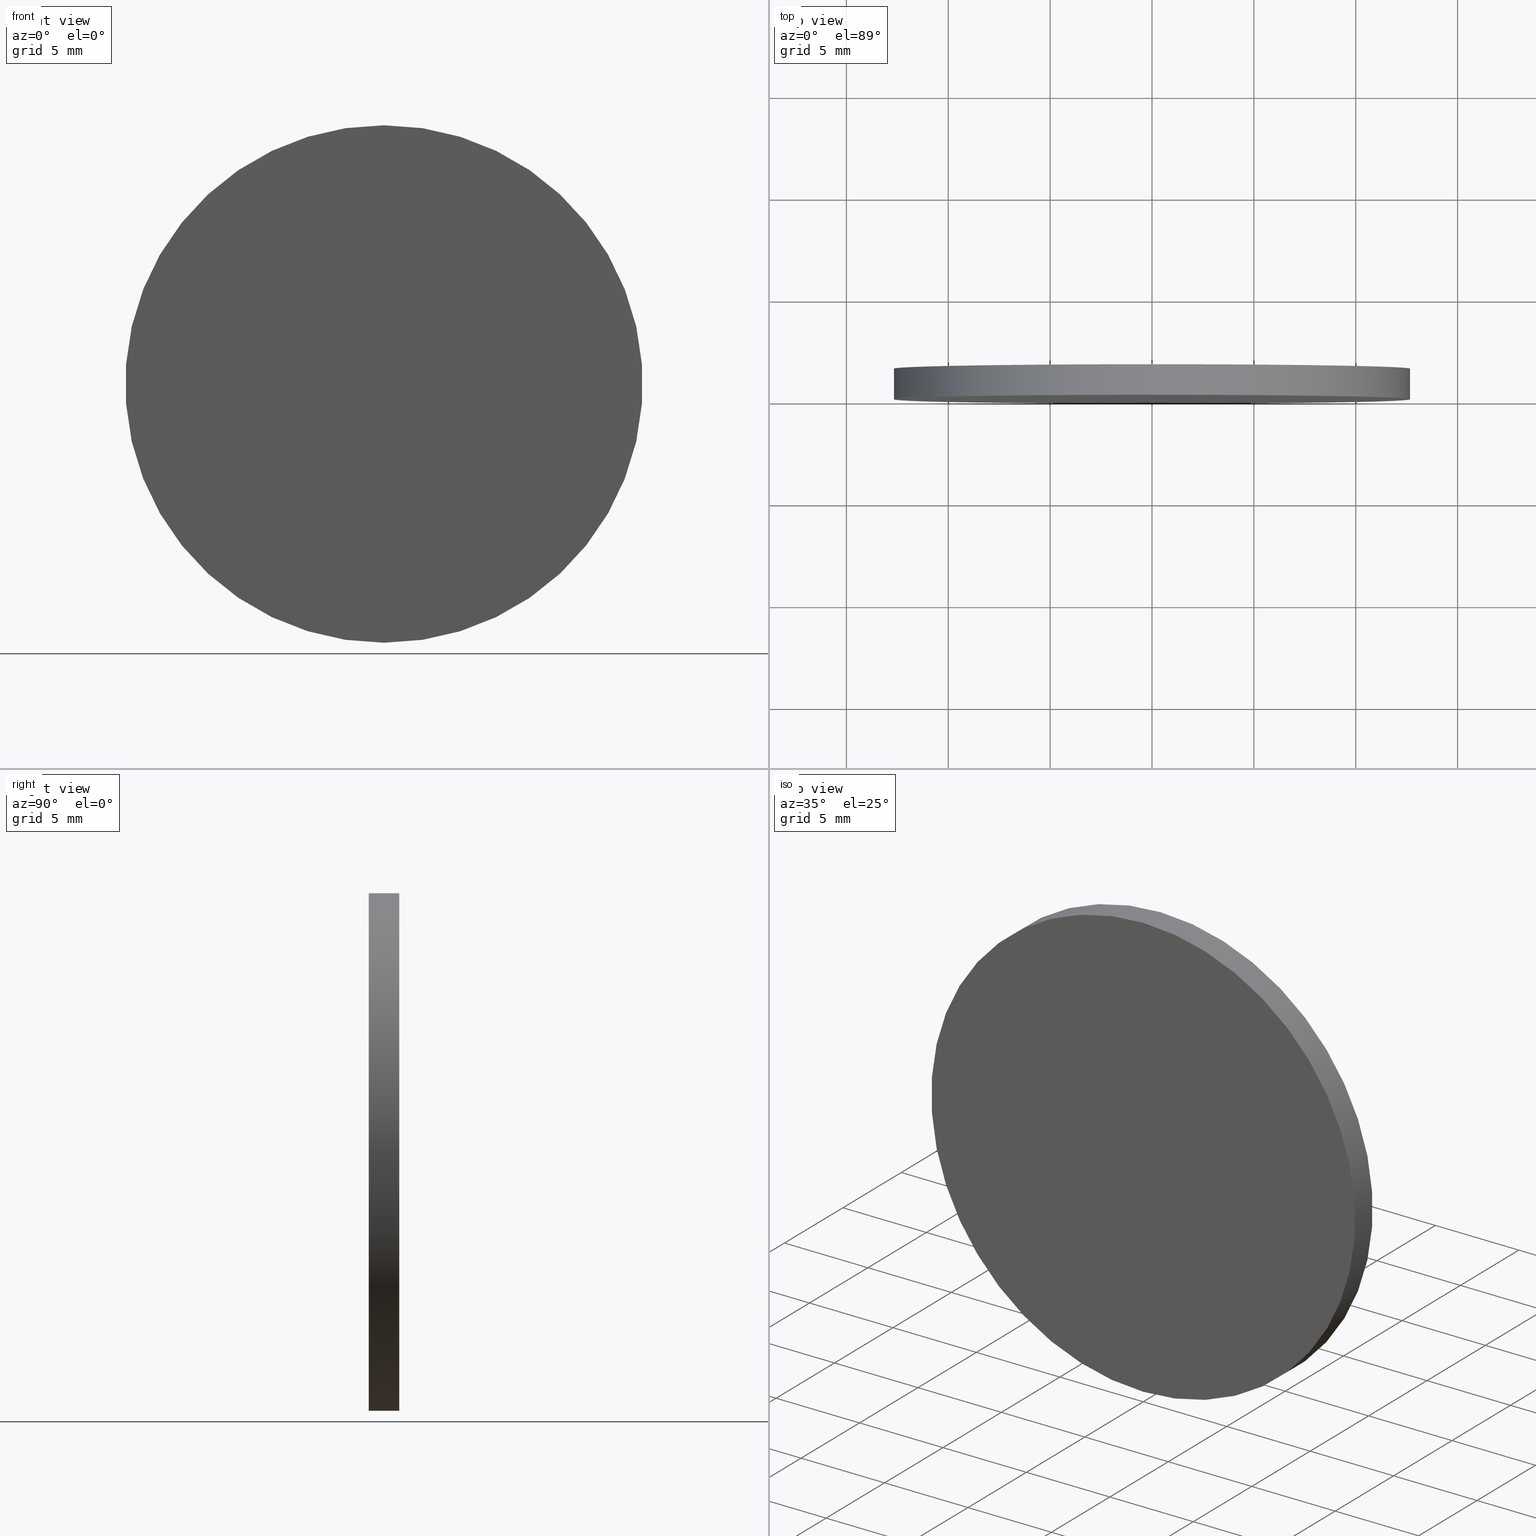
[diagram: canonical four-view strip — front | top / right | iso, engineering-drawing reading convention]
A machine part, canonical four-view strip (front | top / right | iso — engineering-drawing reading convention). The complete STEP part file that produces these views, byte-faithful:
ISO-10303-21;
HEADER;
FILE_DESCRIPTION (( 'STEP AP214' ),
    '1' );
FILE_NAME ('350502.STEP',
    '2019-08-14T05:52:44',
    ( 'user' ),
    ( '΢���й�' ),
    'SwSTEP 2.0',
    'SolidWorks 2016',
    '' );
FILE_SCHEMA (( 'AUTOMOTIVE_DESIGN' ));
ENDSEC;

DATA;
#1 = EDGE_CURVE ( 'NONE', #137, #12, #3, .T. ) ;
#2 =( LENGTH_UNIT ( ) NAMED_UNIT ( * ) SI_UNIT ( .MILLI., .METRE. ) );
#3 = CIRCLE ( 'NONE', #115, 12.69999999999999900 ) ;
#4 =( NAMED_UNIT ( * ) SI_UNIT ( $, .STERADIAN. ) SOLID_ANGLE_UNIT ( ) );
#5 = AXIS2_PLACEMENT_3D ( 'NONE', #87, #127, #116 ) ;
#6 = VECTOR ( 'NONE', #43, 1000.000000000000000 ) ;
#7 =( LENGTH_UNIT ( ) NAMED_UNIT ( * ) SI_UNIT ( .MILLI., .METRE. ) );
#8 = PRODUCT ( '350502', '350502', '', ( #100 ) ) ;
#9 = ORIENTED_EDGE ( 'NONE', *, *, #89, .T. ) ;
#10 = CARTESIAN_POINT ( 'NONE',  ( 0.0000000000000000000, 1.500000000000000000, -12.69999999999999900 ) ) ;
#11 = DIRECTION ( 'NONE',  ( -0.0000000000000000000, -1.000000000000000000, -0.0000000000000000000 ) ) ;
#12 = VERTEX_POINT ( 'NONE', #34 ) ;
#13 = CARTESIAN_POINT ( 'NONE',  ( 0.0000000000000000000, 0.0000000000000000000, 0.0000000000000000000 ) ) ;
#14 = PLANE ( 'NONE',  #123 ) ;
#15 =( LENGTH_UNIT ( ) NAMED_UNIT ( * ) SI_UNIT ( .MILLI., .METRE. ) );
#16 = CIRCLE ( 'NONE', #5, 12.69999999999999900 ) ;
#17 = ORIENTED_EDGE ( 'NONE', *, *, #1, .F. ) ;
#18 = SURFACE_SIDE_STYLE ('',( #73 ) ) ;
#19 = EDGE_LOOP ( 'NONE', ( #17, #85, #9, #99 ) ) ;
#20 = PRODUCT_DEFINITION_SHAPE ( 'NONE', 'NONE',  #50 ) ;
#21 = ADVANCED_FACE ( 'NONE', ( #91 ), #14, .T. ) ;
#22 = STYLED_ITEM ( 'NONE', ( #103 ), #133 ) ;
#23 = UNCERTAINTY_MEASURE_WITH_UNIT (LENGTH_MEASURE( 1.000000000000000100E-005 ), #2, 'distance_accuracy_value', 'NONE');
#24 = FILL_AREA_STYLE_COLOUR ( '', #118 ) ;
#25 = CIRCLE ( 'NONE', #104, 12.69999999999999900 ) ;
#26 = VERTEX_POINT ( 'NONE', #122 ) ;
#27 = AXIS2_PLACEMENT_3D ( 'NONE', #96, #32, #106 ) ;
#28 = SURFACE_SIDE_STYLE ('',( #121 ) ) ;
#29 = AXIS2_PLACEMENT_3D ( 'NONE', #13, #120, #129 ) ;
#30 = DIRECTION ( 'NONE',  ( 0.0000000000000000000, -0.0000000000000000000, 1.000000000000000000 ) ) ;
#31 = ORIENTED_EDGE ( 'NONE', *, *, #1, .T. ) ;
#32 = DIRECTION ( 'NONE',  ( 0.0000000000000000000, 1.000000000000000000, 0.0000000000000000000 ) ) ;
#33 = PRESENTATION_LAYER_ASSIGNMENT (  '', '', ( #22 ) ) ;
#34 = CARTESIAN_POINT ( 'NONE',  ( 0.0000000000000000000, 1.500000000000000000, -12.69999999999999900 ) ) ;
#35 = APPLICATION_CONTEXT ( 'automotive_design' ) ;
#36 =( NAMED_UNIT ( * ) SI_UNIT ( $, .STERADIAN. ) SOLID_ANGLE_UNIT ( ) );
#37 = ORIENTED_EDGE ( 'NONE', *, *, #70, .F. ) ;
#38 = MECHANICAL_DESIGN_GEOMETRIC_PRESENTATION_REPRESENTATION (  '', ( #22 ), #48 ) ;
#39 = AXIS2_PLACEMENT_3D ( 'NONE', #49, #130, #69 ) ;
#40 = DIRECTION ( 'NONE',  ( -0.0000000000000000000, -1.000000000000000000, -0.0000000000000000000 ) ) ;
#41 = PLANE ( 'NONE',  #29 ) ;
#42 = CIRCLE ( 'NONE', #27, 12.69999999999999900 ) ;
#43 = DIRECTION ( 'NONE',  ( -0.0000000000000000000, -1.000000000000000000, -0.0000000000000000000 ) ) ;
#44 = CARTESIAN_POINT ( 'NONE',  ( 0.0000000000000000000, 1.500000000000000000, 0.0000000000000000000 ) ) ;
#45 = APPLICATION_PROTOCOL_DEFINITION ( 'draft international standard', 'automotive_design', 1998, #56 ) ;
#46 = APPLICATION_PROTOCOL_DEFINITION ( 'draft international standard', 'automotive_design', 1998, #35 ) ;
#47 = CARTESIAN_POINT ( 'NONE',  ( 0.0000000000000000000, 1.500000000000000000, 0.0000000000000000000 ) ) ;
#48 =( GEOMETRIC_REPRESENTATION_CONTEXT ( 3 ) GLOBAL_UNCERTAINTY_ASSIGNED_CONTEXT ( ( #109 ) ) GLOBAL_UNIT_ASSIGNED_CONTEXT ( ( #7, #72, #132 ) ) REPRESENTATION_CONTEXT ( 'NONE', 'WORKASPACE' ) );
#49 = CARTESIAN_POINT ( 'NONE',  ( 0.0000000000000000000, 0.0000000000000000000, 0.0000000000000000000 ) ) ;
#50 = PRODUCT_DEFINITION ( 'δ֪', '', #55, #97 ) ;
#51 = DIRECTION ( 'NONE',  ( 0.0000000000000000000, 1.000000000000000000, 0.0000000000000000000 ) ) ;
#52 = ORIENTED_EDGE ( 'NONE', *, *, #81, .F. ) ;
#53 =( NAMED_UNIT ( * ) PLANE_ANGLE_UNIT ( ) SI_UNIT ( $, .RADIAN. ) );
#54 =( GEOMETRIC_REPRESENTATION_CONTEXT ( 3 ) GLOBAL_UNCERTAINTY_ASSIGNED_CONTEXT ( ( #23 ) ) GLOBAL_UNIT_ASSIGNED_CONTEXT ( ( #2, #53, #36 ) ) REPRESENTATION_CONTEXT ( 'NONE', 'WORKASPACE' ) );
#55 = PRODUCT_DEFINITION_FORMATION_WITH_SPECIFIED_SOURCE ( '�κ�', '', #8, .NOT_KNOWN. ) ;
#56 = APPLICATION_CONTEXT ( 'automotive_design' ) ;
#57 = ORIENTED_EDGE ( 'NONE', *, *, #95, .T. ) ;
#58 = FACE_OUTER_BOUND ( 'NONE', #19, .T. ) ;
#59 = FILL_AREA_STYLE_COLOUR ( '', #90 ) ;
#60 = DIRECTION ( 'NONE',  ( 0.0000000000000000000, 0.0000000000000000000, 1.000000000000000000 ) ) ;
#61 = UNCERTAINTY_MEASURE_WITH_UNIT (LENGTH_MEASURE( 1.000000000000000100E-005 ), #15, 'distance_accuracy_value', 'NONE');
#62 = EDGE_CURVE ( 'NONE', #12, #26, #82, .T. ) ;
#63 = ADVANCED_FACE ( 'NONE', ( #58 ), #98, .T. ) ;
#64 = PRODUCT_RELATED_PRODUCT_CATEGORY ( 'part', '', ( #8 ) ) ;
#65 = DIRECTION ( 'NONE',  ( 0.0000000000000000000, 1.000000000000000000, 0.0000000000000000000 ) ) ;
#66 = CARTESIAN_POINT ( 'NONE',  ( 0.0000000000000000000, 1.500000000000000000, 0.0000000000000000000 ) ) ;
#67 = DIRECTION ( 'NONE',  ( 0.0000000000000000000, 1.000000000000000000, 0.0000000000000000000 ) ) ;
#68 = ORIENTED_EDGE ( 'NONE', *, *, #89, .F. ) ;
#69 = DIRECTION ( 'NONE',  ( 1.000000000000000000, 0.0000000000000000000, 0.0000000000000000000 ) ) ;
#70 = EDGE_CURVE ( 'NONE', #137, #139, #108, .T. ) ;
#71 = STYLED_ITEM ( 'NONE', ( #117 ), #84 ) ;
#72 =( NAMED_UNIT ( * ) PLANE_ANGLE_UNIT ( ) SI_UNIT ( $, .RADIAN. ) );
#73 = SURFACE_STYLE_FILL_AREA ( #93 ) ;
#74 = ADVANCED_FACE ( 'NONE', ( #112 ), #131, .T. ) ;
#75 = CARTESIAN_POINT ( 'NONE',  ( 1.555301434917138400E-015, 1.500000000000000000, 12.69999999999999900 ) ) ;
#76 = PRESENTATION_LAYER_ASSIGNMENT (  '', '', ( #71 ) ) ;
#77 = CARTESIAN_POINT ( 'NONE',  ( 0.0000000000000000000, 1.500000000000000000, 0.0000000000000000000 ) ) ;
#78 = SURFACE_STYLE_USAGE ( .BOTH. , #18 ) ;
#79 = SHAPE_DEFINITION_REPRESENTATION ( #20, #84 ) ;
#80 = EDGE_LOOP ( 'NONE', ( #37, #52, #110, #57 ) ) ;
#81 = EDGE_CURVE ( 'NONE', #12, #137, #25, .T. ) ;
#82 = LINE ( 'NONE', #10, #6 ) ;
#83 = MECHANICAL_DESIGN_GEOMETRIC_PRESENTATION_REPRESENTATION (  '', ( #71 ), #92 ) ;
#84 = ADVANCED_BREP_SHAPE_REPRESENTATION ( '350502', ( #133, #39 ), #54 ) ;
#85 = ORIENTED_EDGE ( 'NONE', *, *, #70, .T. ) ;
#86 = DIRECTION ( 'NONE',  ( -0.0000000000000000000, -1.000000000000000000, -0.0000000000000000000 ) ) ;
#87 = CARTESIAN_POINT ( 'NONE',  ( 0.0000000000000000000, 0.0000000000000000000, 0.0000000000000000000 ) ) ;
#88 =( NAMED_UNIT ( * ) PLANE_ANGLE_UNIT ( ) SI_UNIT ( $, .RADIAN. ) );
#89 = EDGE_CURVE ( 'NONE', #139, #26, #42, .T. ) ;
#90 = COLOUR_RGB ( '',1.000000000000000000, 1.000000000000000000, 1.000000000000000000 ) ;
#91 = FACE_OUTER_BOUND ( 'NONE', #94, .T. ) ;
#92 =( GEOMETRIC_REPRESENTATION_CONTEXT ( 3 ) GLOBAL_UNCERTAINTY_ASSIGNED_CONTEXT ( ( #61 ) ) GLOBAL_UNIT_ASSIGNED_CONTEXT ( ( #15, #88, #4 ) ) REPRESENTATION_CONTEXT ( 'NONE', 'WORKASPACE' ) );
#93 = FILL_AREA_STYLE ('',( #24 ) ) ;
#94 = EDGE_LOOP ( 'NONE', ( #114, #31 ) ) ;
#95 = EDGE_CURVE ( 'NONE', #26, #139, #16, .T. ) ;
#96 = CARTESIAN_POINT ( 'NONE',  ( 0.0000000000000000000, 0.0000000000000000000, 0.0000000000000000000 ) ) ;
#97 = PRODUCT_DEFINITION_CONTEXT ( 'detailed design', #56, 'design' ) ;
#98 = CYLINDRICAL_SURFACE ( 'NONE', #128, 12.69999999999999900 ) ;
#99 = ORIENTED_EDGE ( 'NONE', *, *, #62, .F. ) ;
#100 = PRODUCT_CONTEXT ( 'NONE', #35, 'mechanical' ) ;
#101 = SURFACE_STYLE_USAGE ( .BOTH. , #28 ) ;
#102 = CARTESIAN_POINT ( 'NONE',  ( 1.555301434917138400E-015, 1.500000000000000000, 12.69999999999999900 ) ) ;
#103 = PRESENTATION_STYLE_ASSIGNMENT (( #78 ) ) ;
#104 = AXIS2_PLACEMENT_3D ( 'NONE', #138, #65, #125 ) ;
#105 = CLOSED_SHELL ( 'NONE', ( #63, #74, #21, #113 ) ) ;
#106 = DIRECTION ( 'NONE',  ( 0.0000000000000000000, 0.0000000000000000000, 1.000000000000000000 ) ) ;
#107 = CARTESIAN_POINT ( 'NONE',  ( 1.555301434917138400E-015, 0.0000000000000000000, 12.69999999999999900 ) ) ;
#108 = LINE ( 'NONE', #75, #119 ) ;
#109 = UNCERTAINTY_MEASURE_WITH_UNIT (LENGTH_MEASURE( 1.000000000000000100E-005 ), #7, 'distance_accuracy_value', 'NONE');
#110 = ORIENTED_EDGE ( 'NONE', *, *, #62, .T. ) ;
#111 = FILL_AREA_STYLE ('',( #59 ) ) ;
#112 = FACE_OUTER_BOUND ( 'NONE', #80, .T. ) ;
#113 = ADVANCED_FACE ( 'NONE', ( #126 ), #41, .F. ) ;
#114 = ORIENTED_EDGE ( 'NONE', *, *, #81, .T. ) ;
#115 = AXIS2_PLACEMENT_3D ( 'NONE', #77, #67, #60 ) ;
#116 = DIRECTION ( 'NONE',  ( 0.0000000000000000000, 0.0000000000000000000, 1.000000000000000000 ) ) ;
#117 = PRESENTATION_STYLE_ASSIGNMENT (( #101 ) ) ;
#118 = COLOUR_RGB ( '',1.000000000000000000, 1.000000000000000000, 1.000000000000000000 ) ;
#119 = VECTOR ( 'NONE', #86, 1000.000000000000000 ) ;
#120 = DIRECTION ( 'NONE',  ( 0.0000000000000000000, 1.000000000000000000, 0.0000000000000000000 ) ) ;
#121 = SURFACE_STYLE_FILL_AREA ( #111 ) ;
#122 = CARTESIAN_POINT ( 'NONE',  ( 0.0000000000000000000, 0.0000000000000000000, -12.69999999999999900 ) ) ;
#123 = AXIS2_PLACEMENT_3D ( 'NONE', #44, #51, #30 ) ;
#124 = EDGE_LOOP ( 'NONE', ( #135, #68 ) ) ;
#125 = DIRECTION ( 'NONE',  ( 0.0000000000000000000, 0.0000000000000000000, 1.000000000000000000 ) ) ;
#126 = FACE_OUTER_BOUND ( 'NONE', #124, .T. ) ;
#127 = DIRECTION ( 'NONE',  ( 0.0000000000000000000, 1.000000000000000000, 0.0000000000000000000 ) ) ;
#128 = AXIS2_PLACEMENT_3D ( 'NONE', #47, #11, #134 ) ;
#129 = DIRECTION ( 'NONE',  ( 0.0000000000000000000, -0.0000000000000000000, 1.000000000000000000 ) ) ;
#130 = DIRECTION ( 'NONE',  ( 0.0000000000000000000, 0.0000000000000000000, 1.000000000000000000 ) ) ;
#131 = CYLINDRICAL_SURFACE ( 'NONE', #136, 12.69999999999999900 ) ;
#132 =( NAMED_UNIT ( * ) SI_UNIT ( $, .STERADIAN. ) SOLID_ANGLE_UNIT ( ) );
#133 = MANIFOLD_SOLID_BREP ( '͹̨-����1', #105 ) ;
#134 = DIRECTION ( 'NONE',  ( 0.0000000000000000000, 0.0000000000000000000, -1.000000000000000000 ) ) ;
#135 = ORIENTED_EDGE ( 'NONE', *, *, #95, .F. ) ;
#136 = AXIS2_PLACEMENT_3D ( 'NONE', #66, #40, #140 ) ;
#137 = VERTEX_POINT ( 'NONE', #102 ) ;
#138 = CARTESIAN_POINT ( 'NONE',  ( 0.0000000000000000000, 1.500000000000000000, 0.0000000000000000000 ) ) ;
#139 = VERTEX_POINT ( 'NONE', #107 ) ;
#140 = DIRECTION ( 'NONE',  ( 0.0000000000000000000, 0.0000000000000000000, -1.000000000000000000 ) ) ;
ENDSEC;
END-ISO-10303-21;
